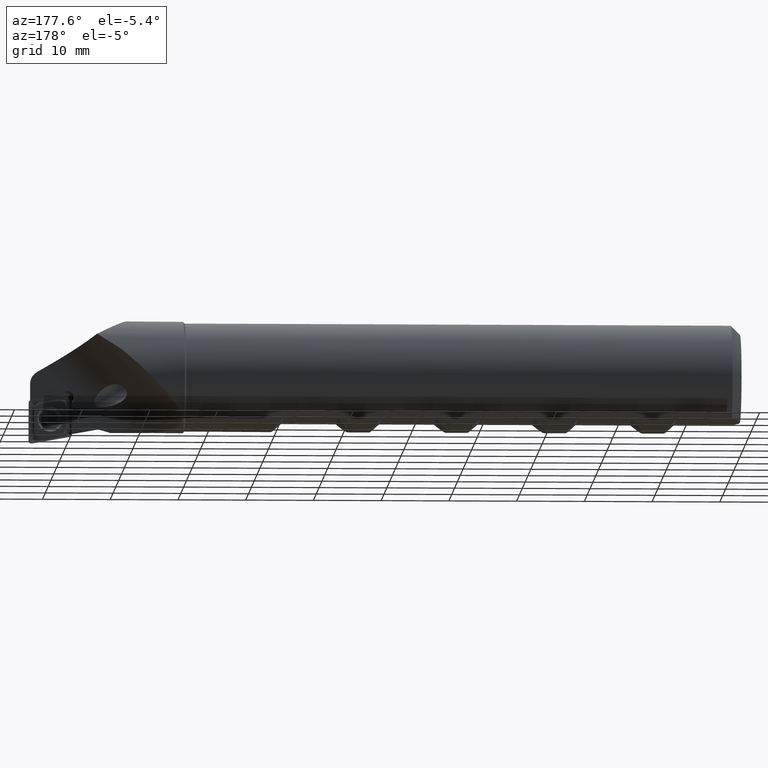
[diagram: clean part render]
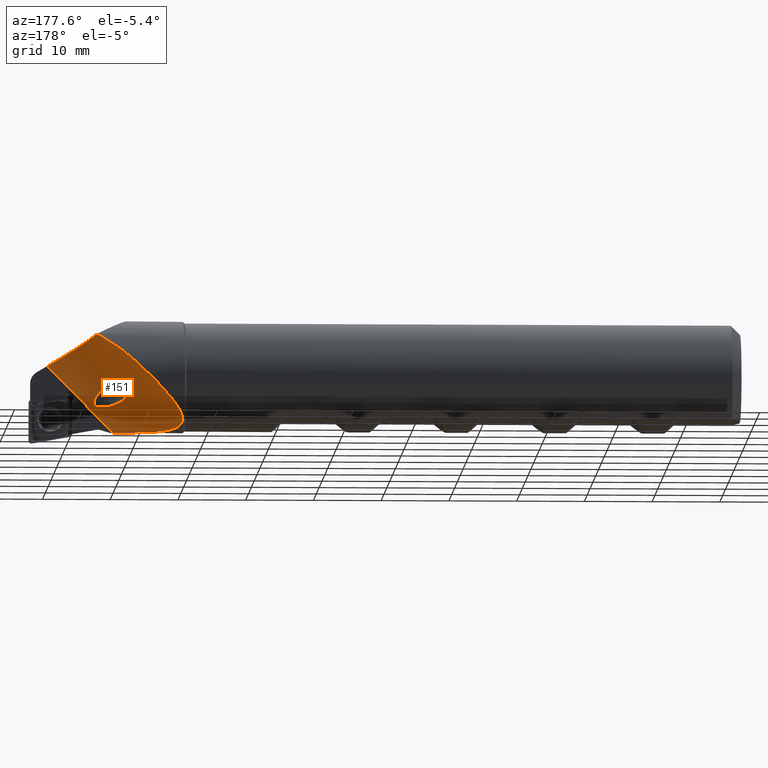
[diagram: same view with one face highlighted and labeled with its STEP entity id]
A machine part, auxiliary view. The second image highlights one B-rep face of the part: STEP entity #151.
In plain terms, the highlighted cylindrical surface (partial cylindrical patch) has radius 10 mm, axis along (-0.7058, -0.0617, -0.7058).
Its self-contained STEP definition (entity closure, byte-faithful):
#78 = VERTEX_POINT ( 'NONE', #3579 ) ;
#113 = CARTESIAN_POINT ( 'NONE',  ( 94.42279478703413500, 0.9227747077950543300, -2.165373821498643500 ) ) ;
#126 = CARTESIAN_POINT ( 'NONE',  ( 92.40853171819513500, 1.977368730618846300, -1.216325852712671200 ) ) ;
#151 = ADVANCED_FACE ( 'NONE', ( #1423, #3671 ), #3405, .F. ) ;
#160 = CARTESIAN_POINT ( 'NONE',  ( 85.05463793922514500, 7.792571398033995700, -2.720492985204813400 ) ) ;
#164 = CARTESIAN_POINT ( 'NONE',  ( 94.81279082509134100, 5.966060737431767800, 5.698124189351756500 ) ) ;
#167 = CARTESIAN_POINT ( 'NONE',  ( 91.26398076406036400, 2.364527715702508600, -1.505578171533947400 ) ) ;
#171 = CARTESIAN_POINT ( 'NONE',  ( 85.47870053942779100, 1.372822541037112000, -8.136110431622466200 ) ) ;
#188 = CARTESIAN_POINT ( 'NONE',  ( 83.82874726931567000, 7.150984415827331900, -4.123198518134644000 ) ) ;
#196 = CARTESIAN_POINT ( 'NONE',  ( 82.47773327423274700, 5.112641907717137900, -6.476896705371637500 ) ) ;
#202 = CARTESIAN_POINT ( 'NONE',  ( 95.07414858970254600, 0.5837067189642786100, -2.996514548584807300 ) ) ;
#229 = CARTESIAN_POINT ( 'NONE',  ( 95.13635201433335500, 5.808092099476027700, 5.883673778202167500 ) ) ;
#242 = AXIS2_PLACEMENT_3D ( 'NONE', #1268, #2451, #1863 ) ;
#270 = CARTESIAN_POINT ( 'NONE',  ( 89.22407377641575000, 0.2063974402334956800, -8.248546554177606200 ) ) ;
#308 = EDGE_CURVE ( 'NONE', #935, #2758, #2897, .T. ) ;
#387 = CARTESIAN_POINT ( 'NONE',  ( 96.55647774403179500, 2.773655923282334800, 4.907992550361607100 ) ) ;
#394 = LINE ( 'NONE', #3061, #994 ) ;
#400 = CARTESIAN_POINT ( 'NONE',  ( 94.92983895248563900, 0.6592503930429202100, -2.769428116541997400 ) ) ;
#416 = CARTESIAN_POINT ( 'NONE',  ( 93.14594868177704300, 1.611883033864987200, -1.347452888574436100 ) ) ;
#420 = CARTESIAN_POINT ( 'NONE',  ( 99.14732768001037800, 0.9542861417993008200, 3.327283161697195200 ) ) ;
#457 = CARTESIAN_POINT ( 'NONE',  ( 90.61780426396696000, 1.855565765349420000, -2.940971187348442300 ) ) ;
#461 = CARTESIAN_POINT ( 'NONE',  ( 84.61989537200767600, 1.844104437066210700, -8.042962511283652900 ) ) ;
#467 = CARTESIAN_POINT ( 'NONE',  ( 93.18404945148722600, 0.5384889056533124200, -4.380087823963942000 ) ) ;
#471 = CARTESIAN_POINT ( 'NONE',  ( 82.68438157144717600, 5.837127699295306700, -5.832196515561955500 ) ) ;
#493 = CARTESIAN_POINT ( 'NONE',  ( 91.67266071180506500, 1.034425680324337700, -3.904072093094086900 ) ) ;
#510 = CARTESIAN_POINT ( 'NONE',  ( 91.17347121959994600, -0.02569698064891597100, -8.250226498002538400 ) ) ;
#516 = CARTESIAN_POINT ( 'NONE',  ( 95.09190505756737400, 0.3402841488204005300, -4.255713509863089600 ) ) ;
#538 = ORIENTED_EDGE ( 'NONE', *, *, #3007, .T. ) ;
#695 = CARTESIAN_POINT ( 'NONE',  ( 95.13635201433335500, 5.808092099476027700, 5.883673778202167500 ) ) ;
#702 = CARTESIAN_POINT ( 'NONE',  ( 91.22717694912134300, 1.271470279712139100, -3.655307711642816800 ) ) ;
#717 = CARTESIAN_POINT ( 'NONE',  ( 90.55831312872686600, 2.149528167245512700, -2.467014762395682400 ) ) ;
#735 = CARTESIAN_POINT ( 'NONE',  ( 90.68001252192908600, 2.309038394849757900, -2.096930715223227700 ) ) ;
#752 = CARTESIAN_POINT ( 'NONE',  ( 83.46457210586652300, 6.862117985993690700, -4.587884139955465700 ) ) ;
#774 = CARTESIAN_POINT ( 'NONE',  ( 82.46625092989408800, 4.980605815046057900, -6.579033865242605500 ) ) ;
#783 = CARTESIAN_POINT ( 'NONE',  ( 95.19801973271023600, 0.3478571785144403700, -4.160393971103950200 ) ) ;
#795 = CARTESIAN_POINT ( 'NONE',  ( 91.55645977103189600, 1.091363070299913300, -3.845419237512389900 ) ) ;
#797 = CARTESIAN_POINT ( 'NONE',  ( 87.06646073698078700, 8.237948317455497700, -0.6351272398047614900 ) ) ;
#935 = VERTEX_POINT ( 'NONE', #229 ) ;
#994 = VECTOR ( 'NONE', #3392, 1000.000000000000100 ) ;
#1033 = CARTESIAN_POINT ( 'NONE',  ( 94.02831335080993800, 1.134033422602017900, -1.828178611006525200 ) ) ;
#1063 = CARTESIAN_POINT ( 'NONE',  ( 91.32394160923593100, 7.579248507518507000, 3.286439135073551100 ) ) ;
#1070 = CARTESIAN_POINT ( 'NONE',  ( 94.81279082509134100, 5.966060737431767800, 5.698124189351756500 ) ) ;
#1073 = CARTESIAN_POINT ( 'NONE',  ( 83.82249756408157300, 2.417296308680590300, -7.890574200201366600 ) ) ;
#1113 = CARTESIAN_POINT ( 'NONE',  ( 94.28408923169075700, 0.3734443952709916600, -4.465413627818486800 ) ) ;
#1254 =( BOUNDED_CURVE ( )  B_SPLINE_CURVE ( 3, ( #695, #387, #420, #1598 ),
 .UNSPECIFIED., .F., .F. ) 
 B_SPLINE_CURVE_WITH_KNOTS ( ( 4, 4 ),
 ( 0.1232158796839822500, 1.125063297520777100 ),
 .UNSPECIFIED. ) 
 CURVE ( )  GEOMETRIC_REPRESENTATION_ITEM ( )  RATIONAL_B_SPLINE_CURVE ( ( 1.000000000000000000, 0.9180928919427942000, 0.9180928919427942000, 1.000000000000000000 ) ) 
 REPRESENTATION_ITEM ( '' )  );
#1268 = CARTESIAN_POINT ( 'NONE',  ( 108.2508540501084000, 11.28204560097226600, 6.636981493683329300 ) ) ;
#1303 = CARTESIAN_POINT ( 'NONE',  ( 91.50844736824602400, 2.313712201658904500, -1.380398269456076100 ) ) ;
#1316 = CARTESIAN_POINT ( 'NONE',  ( 91.89399153700050200, 2.191927117732401800, -1.259937783567834500 ) ) ;
#1323 = CARTESIAN_POINT ( 'NONE',  ( 89.87673581892181600, 7.998254840959744700, 2.034740607515970200 ) ) ;
#1343 = CARTESIAN_POINT ( 'NONE',  ( 92.27922560824981700, 2.035709930198472200, -1.215676376601261700 ) ) ;
#1346 = CARTESIAN_POINT ( 'NONE',  ( 90.11859365492830400, 7.940158404167386100, 2.250580439175839500 ) ) ;
#1353 = CARTESIAN_POINT ( 'NONE',  ( 82.46770247416755200, 4.711604762658517100, -6.774282356484208700 ) ) ;
#1365 = CARTESIAN_POINT ( 'NONE',  ( 91.44669883039505000, 1.151398806770652900, -3.782048728889201100 ) ) ;
#1369 = CARTESIAN_POINT ( 'NONE',  ( 83.29483741608788700, 6.703565843215958600, -4.817382303978957800 ) ) ;
#1390 = CARTESIAN_POINT ( 'NONE',  ( 95.25063183122887300, 0.4837834940243319600, -3.364083629592476800 ) ) ;
#1423 = FACE_OUTER_BOUND ( 'NONE', #1518, .T. ) ;
#1470 = EDGE_CURVE ( 'NONE', #78, #2926, #394, .T. ) ;
#1518 = EDGE_LOOP ( 'NONE', ( #2779, #538, #3091, #2346 ) ) ;
#1598 = CARTESIAN_POINT ( 'NONE',  ( 102.2722747452705600, 0.7970407068907632300, 1.529959616322085400 ) ) ;
#1625 = CARTESIAN_POINT ( 'NONE',  ( 85.18650896685466000, 1.519601010731012300, -8.110535118036720400 ) ) ;
#1635 = CARTESIAN_POINT ( 'NONE',  ( 90.58051473198929700, 1.934321479735424500, -2.827303919199995400 ) ) ;
#1640 = EDGE_LOOP ( 'NONE', ( #1940 ) ) ;
#1641 = CARTESIAN_POINT ( 'NONE',  ( 86.61145308633419400, 8.190945871813829300, -1.091862980500433600 ) ) ;
#1646 = CARTESIAN_POINT ( 'NONE',  ( 91.44669883039505000, 1.151398806770652900, -3.782048728889201100 ) ) ;
#1653 = CARTESIAN_POINT ( 'NONE',  ( 84.02298037049227700, 7.280794784554201400, -3.888485692124142600 ) ) ;
#1667 = CARTESIAN_POINT ( 'NONE',  ( 84.34418248513902900, 2.022617653384543200, -8.000843735573242900 ) ) ;
#1678 = CARTESIAN_POINT ( 'NONE',  ( 83.14660840993093400, 3.096183806076538300, -7.651002940816924000 ) ) ;
#1684 = CARTESIAN_POINT ( 'NONE',  ( 92.40031008098111400, 0.7453524427010169700, -4.191563966098655700 ) ) ;
#1717 = CARTESIAN_POINT ( 'NONE',  ( 95.29575882342472000, 0.4542923289848722100, -3.493390944431944400 ) ) ;
#1863 = DIRECTION ( 'NONE',  ( -0.7071067811865455700, -1.734723475976808300E-016, 0.7071067811865495700 ) ) ;
#1886 = CARTESIAN_POINT ( 'NONE',  ( 92.02238511875937400, 2.142745048460093400, -1.237615610633797900 ) ) ;
#1896 = CARTESIAN_POINT ( 'NONE',  ( 93.38116341895693000, 1.485191360260565100, -1.442749355823391500 ) ) ;
#1913 = CARTESIAN_POINT ( 'NONE',  ( 84.42314837974215900, 7.511504183772420800, -3.421636826113396300 ) ) ;
#1917 = CARTESIAN_POINT ( 'NONE',  ( 94.92013113696931700, 5.909270989717621000, 5.757584298129058800 ) ) ;
#1931 = CARTESIAN_POINT ( 'NONE',  ( 82.95436295751781600, 3.351818408483764300, -7.544220781660688300 ) ) ;
#1935 = CARTESIAN_POINT ( 'NONE',  ( 95.13635201433335500, 5.808092099476027700, 5.883673778202167500 ) ) ;
#1940 = ORIENTED_EDGE ( 'NONE', *, *, #2710, .F. ) ;
#1944 = CARTESIAN_POINT ( 'NONE',  ( 85.93795317957868500, 8.058056465293855600, -1.784808326663873500 ) ) ;
#1957 = CARTESIAN_POINT ( 'NONE',  ( 82.85211707265064300, 6.159891513962239000, -5.496775457690646700 ) ) ;
#1963 = CARTESIAN_POINT ( 'NONE',  ( 95.03211111539656000, 0.3386360621152339500, -4.292842102753763100 ) ) ;
#1968 = CARTESIAN_POINT ( 'NONE',  ( 82.52119559377807400, 5.365553485440627500, -6.268981895290131900 ) ) ;
#1980 = CARTESIAN_POINT ( 'NONE',  ( 91.90919568048377600, 0.9293295708545148400, -4.010596926828886100 ) ) ;
#1984 = CARTESIAN_POINT ( 'NONE',  ( 91.83332924902505600, -0.05857669549424344300, -8.249792044090847700 ) ) ;
#1992 = CARTESIAN_POINT ( 'NONE',  ( 87.94775995434319800, 0.4790732452577076700, -8.237208810358529500 ) ) ;
#2002 = CARTESIAN_POINT ( 'NONE',  ( 87.31681149530511700, 0.6518591974243338500, -8.227190871824873900 ) ) ;
#2174 = CARTESIAN_POINT ( 'NONE',  ( 94.85190051380561700, 0.6993835232476101100, -2.661757568264865100 ) ) ;
#2220 = CARTESIAN_POINT ( 'NONE',  ( 90.79318453745023000, 1.624182148948715600, -3.245848529060449300 ) ) ;
#2253 = CARTESIAN_POINT ( 'NONE',  ( 90.84179906594077600, 7.742591018981272600, 2.882654245426250500 ) ) ;
#2260 = CARTESIAN_POINT ( 'NONE',  ( 95.24108796370505600, 0.3536427350840866100, -4.104423438066043600 ) ) ;
#2264 = CARTESIAN_POINT ( 'NONE',  ( 85.27301386008299700, 7.870512846710754600, -2.485303120382004800 ) ) ;
#2285 = CARTESIAN_POINT ( 'NONE',  ( 95.14067975981966200, 0.5482840295099699100, -3.116194138294044800 ) ) ;
#2330 = CARTESIAN_POINT ( 'NONE',  ( 89.86952538265576600, 0.1069302649348735100, -8.249573535741010500 ) ) ;
#2346 = ORIENTED_EDGE ( 'NONE', *, *, #3196, .F. ) ;
#2441 = CARTESIAN_POINT ( 'NONE',  ( 92.49252308485755200, -0.05857669549434209300, -8.249792044090865400 ) ) ;
#2451 = DIRECTION ( 'NONE',  ( -0.7057575568079539300, -0.06174578541845274200, -0.7057575568079496000 ) ) ;
#2493 = CARTESIAN_POINT ( 'NONE',  ( 90.72367528639679800, 1.701436365746142700, -3.148875074421100300 ) ) ;
#2507 = CARTESIAN_POINT ( 'NONE',  ( 93.77049664483099900, 6.517499637741202000, 5.120755591739097700 ) ) ;
#2511 = CARTESIAN_POINT ( 'NONE',  ( 90.93048479634056500, 2.381393506924508700, -1.764545924634816700 ) ) ;
#2533 = CARTESIAN_POINT ( 'NONE',  ( 94.81279082509134100, 5.966060737431767800, 5.698124189351756500 ) ) ;
#2541 = CARTESIAN_POINT ( 'NONE',  ( 95.33818573548777000, 0.4008755717423654900, -3.768828477406880800 ) ) ;
#2545 = CARTESIAN_POINT ( 'NONE',  ( 92.78241157631887900, 7.008089180020727200, 4.436433990710853900 ) ) ;
#2551 = CARTESIAN_POINT ( 'NONE',  ( 92.03022430471332900, 0.8807520211368711200, -4.058907122562464700 ) ) ;
#2555 = CARTESIAN_POINT ( 'NONE',  ( 82.55315849060130500, 5.487486492886559700, -6.162447614751210200 ) ) ;
#2566 = CARTESIAN_POINT ( 'NONE',  ( 95.33302575982027300, 0.3776547501669340600, -3.913053750931216000 ) ) ;
#2688 = VERTEX_POINT ( 'NONE', #2864 ) ;
#2710 = EDGE_CURVE ( 'NONE', #2688, #2688, #3768, .T. ) ;
#2758 = VERTEX_POINT ( 'NONE', #1070 ) ;
#2779 = ORIENTED_EDGE ( 'NONE', *, *, #308, .F. ) ;
#2783 = CARTESIAN_POINT ( 'NONE',  ( 91.14470938480012300, 2.379712514165405400, -1.583384852759632400 ) ) ;
#2802 = CARTESIAN_POINT ( 'NONE',  ( 90.62269824519347600, 2.263572957684444100, -2.220269229082732400 ) ) ;
#2807 = CARTESIAN_POINT ( 'NONE',  ( 82.98872357636429300, 6.352373822401709400, -5.271841622951768600 ) ) ;
#2825 = CARTESIAN_POINT ( 'NONE',  ( 93.45771969022058600, 0.4846590619384093500, -4.424131585089072300 ) ) ;
#2838 = CARTESIAN_POINT ( 'NONE',  ( 94.42363286841228400, 0.3611258833076752000, -4.457929828687714000 ) ) ;
#2845 = CARTESIAN_POINT ( 'NONE',  ( 89.39747355548992400, 8.096512833099105000, 1.599603008334203400 ) ) ;
#2856 = CARTESIAN_POINT ( 'NONE',  ( 94.70253687784601500, 0.3434606326119994900, -4.416739925726047600 ) ) ;
#2861 = CARTESIAN_POINT ( 'NONE',  ( 82.48045966331186200, 4.575836460242822300, -6.866626271662941100 ) ) ;
#2864 = CARTESIAN_POINT ( 'NONE',  ( 91.44669883039505000, 1.151398806770652900, -3.782048728889201100 ) ) ;
#2897 = B_SPLINE_CURVE_WITH_KNOTS ( 'NONE', 3,
 ( #1935, #3380, #1917, #164 ),
 .UNSPECIFIED., .F., .F.,
 ( 4, 4 ),
 ( 0.0002457011667993920300, 0.0006506612946869808400 ),
 .UNSPECIFIED. ) ;
#2906 = CARTESIAN_POINT ( 'NONE',  ( 86.38461736024623900, 0.9823408952497247900, -8.192055839604377000 ) ) ;
#2925 = B_SPLINE_CURVE_WITH_KNOTS ( 'NONE', 3,
 ( #2533, #2507, #2545, #1063, #2253, #1346, #1323, #2845, #3690, #3678, #3668, #797, #1641, #1944, #3379, #2264, #160, #3423, #1913, #1653, #188, #752, #1369, #2807, #1957, #471, #3099, #2555, #1968, #196, #774, #1353, #2861, #3090, #3417, #1931, #1678, #3719, #1073, #1667, #461, #1625, #171, #3702, #2906, #2002, #1992, #270, #2330, #510, #1984, #3438 ),
 .UNSPECIFIED., .F., .F.,
 ( 4, 2, 2, 2, 2, 2, 2, 2, 2, 2, 2, 2, 2, 2, 2, 2, 2, 2, 2, 2, 2, 2, 2, 2, 2, 4 ),
 ( 0.0000000000000000000, 0.003883854966194711400, 0.005825782449292066900, 0.006796746190840760100, 0.007767709932389454100, 0.009709637415486841200, 0.01165156489858422600, 0.01262252864013293500, 0.01359349238168164200, 0.01456445612323034900, 0.01553541986477905600, 0.01650638360632776500, 0.01747734734787647100, 0.01796282921865082600, 0.01844831108942517800, 0.01893379296019953200, 0.01941927483097388700, 0.02039023857252258300, 0.02136120231407128200, 0.02233216605561998100, 0.02330312979716867700, 0.02427409353871737600, 0.02524505728026607600, 0.02718698476336347700, 0.02912891224646087900, 0.03107083972955827800 ),
 .UNSPECIFIED. ) ;
#2926 = VERTEX_POINT ( 'NONE', #2441 ) ;
#3007 = EDGE_CURVE ( 'NONE', #935, #78, #1254, .T. ) ;
#3061 = CARTESIAN_POINT ( 'NONE',  ( 108.2508540501084300, 1.320098620054807000, 7.508538921159931200 ) ) ;
#3069 = CARTESIAN_POINT ( 'NONE',  ( 90.83365002991043000, 2.367733027660615000, -1.869669666353357000 ) ) ;
#3090 = CARTESIAN_POINT ( 'NONE',  ( 82.55623442234339400, 4.165471080135098700, -7.128582842534363800 ) ) ;
#3091 = ORIENTED_EDGE ( 'NONE', *, *, #1470, .T. ) ;
#3099 = CARTESIAN_POINT ( 'NONE',  ( 82.63458273673381900, 5.723056314339433300, -5.944316195918992700 ) ) ;
#3122 = CARTESIAN_POINT ( 'NONE',  ( 93.86942026910995200, 0.4218129198005389200, -4.459636102761497700 ) ) ;
#3143 = CARTESIAN_POINT ( 'NONE',  ( 92.65623767462534500, 0.6687668987050421300, -4.263963215529641600 ) ) ;
#3174 = CARTESIAN_POINT ( 'NONE',  ( 94.00721492189546800, 0.4037504163178730600, -4.466406510795943400 ) ) ;
#3196 = EDGE_CURVE ( 'NONE', #2758, #2926, #2925, .T. ) ;
#3366 = CARTESIAN_POINT ( 'NONE',  ( 92.65998849042830400, 1.858251823717336200, -1.237963953028344600 ) ) ;
#3379 = CARTESIAN_POINT ( 'NONE',  ( 85.71499210760663300, 8.003304092582061100, -2.017133528569419200 ) ) ;
#3380 = CARTESIAN_POINT ( 'NONE',  ( 95.02803461427758700, 5.856565854317422800, 5.819310714488825200 ) ) ;
#3387 = CARTESIAN_POINT ( 'NONE',  ( 91.03126835787686800, 1.403862459670945500, -3.510854342307028200 ) ) ;
#3392 = DIRECTION ( 'NONE',  ( -0.7057575568079539300, -0.06174578541845273500, -0.7057575568079496000 ) ) ;
#3404 = CARTESIAN_POINT ( 'NONE',  ( 93.82080333443967400, 1.247116458450682000, -1.682851039837413700 ) ) ;
#3405 = CYLINDRICAL_SURFACE ( 'NONE', #242, 9.999999999999992900 ) ;
#3417 = CARTESIAN_POINT ( 'NONE',  ( 82.66022081578006500, 3.883375681108531400, -7.284871115213123400 ) ) ;
#3423 = CARTESIAN_POINT ( 'NONE',  ( 84.63009024473656400, 7.613158685043139900, -3.188270050098985100 ) ) ;
#3438 = CARTESIAN_POINT ( 'NONE',  ( 92.49252308485755200, -0.05857669549434209300, -8.249792044090865400 ) ) ;
#3579 = CARTESIAN_POINT ( 'NONE',  ( 102.2722747452705600, 0.7970407068907632300, 1.529959616322085400 ) ) ;
#3630 = CARTESIAN_POINT ( 'NONE',  ( 91.63635612812710500, 2.277713567512125200, -1.331369337523691700 ) ) ;
#3642 = CARTESIAN_POINT ( 'NONE',  ( 92.78300114632989400, 1.797144293526165200, -1.258762364334598400 ) ) ;
#3668 = CARTESIAN_POINT ( 'NONE',  ( 87.98673571079118000, 8.257999733992877000, 0.2694800274299867800 ) ) ;
#3671 = FACE_BOUND ( 'NONE', #1640, .T. ) ;
#3675 = CARTESIAN_POINT ( 'NONE',  ( 94.60500331694794300, 0.8272717955540769300, -2.352970793707134200 ) ) ;
#3678 = CARTESIAN_POINT ( 'NONE',  ( 88.45205157311775700, 8.230867787218409500, 0.7173059457625200500 ) ) ;
#3685 = CARTESIAN_POINT ( 'NONE',  ( 90.55085559472270500, 2.080060815194400900, -2.592510782696178400 ) ) ;
#3690 = CARTESIAN_POINT ( 'NONE',  ( 89.15986499520950300, 8.136796390433731900, 1.380162160127851100 ) ) ;
#3702 = CARTESIAN_POINT ( 'NONE',  ( 86.07719487062418300, 1.104351497359531600, -8.176878527593233400 ) ) ;
#3719 = CARTESIAN_POINT ( 'NONE',  ( 83.58041853018136200, 2.630272116157077900, -7.823417971472990100 ) ) ;
#3726 = CARTESIAN_POINT ( 'NONE',  ( 94.84016226961331600, 0.3380960901002356700, -4.384268440175795000 ) ) ;
#3768 = B_SPLINE_CURVE_WITH_KNOTS ( 'NONE', 3,
 ( #1646, #702, #3387, #2220, #2493, #457, #1635, #3685, #717, #2802, #735, #3069, #2511, #2783, #167, #1303, #3630, #1316, #1886, #1343, #126, #3366, #3642, #416, #1896, #3404, #1033, #113, #3675, #2174, #400, #202, #2285, #1390, #1717, #2541, #2566, #2260, #783, #516, #1963, #3726, #2856, #2838, #1113, #3174, #3122, #2825, #467, #3143, #1684, #2551, #1980, #493, #795, #1365 ),
 .UNSPECIFIED., .T., .F.,
 ( 4, 2, 2, 2, 2, 2, 2, 2, 2, 2, 2, 2, 2, 2, 2, 2, 2, 2, 2, 2, 2, 2, 2, 2, 2, 2, 2, 4 ),
 ( 0.0000000000000000000, 0.0008301921823777627400, 0.001245288273566644200, 0.001660384364755525500, 0.002075480455944406600, 0.002490576547133287400, 0.002905672638322168800, 0.003320768729511050500, 0.003735864820699931800, 0.004150960911888813100, 0.004566057003077694500, 0.004981153094266575800, 0.005811345276644337500, 0.006641537459022101000, 0.007471729641399863600, 0.007886825732588757100, 0.008301921823777650600, 0.008717017914966544000, 0.009132114006155435700, 0.009339662051749882500, 0.009547210097344329200, 0.009962306188533186200, 0.01037740227972204300, 0.01079249837091089900, 0.01162269055328861300, 0.01245288273566632700, 0.01286797882685518200, 0.01328307491804403900 ),
 .UNSPECIFIED. ) ;